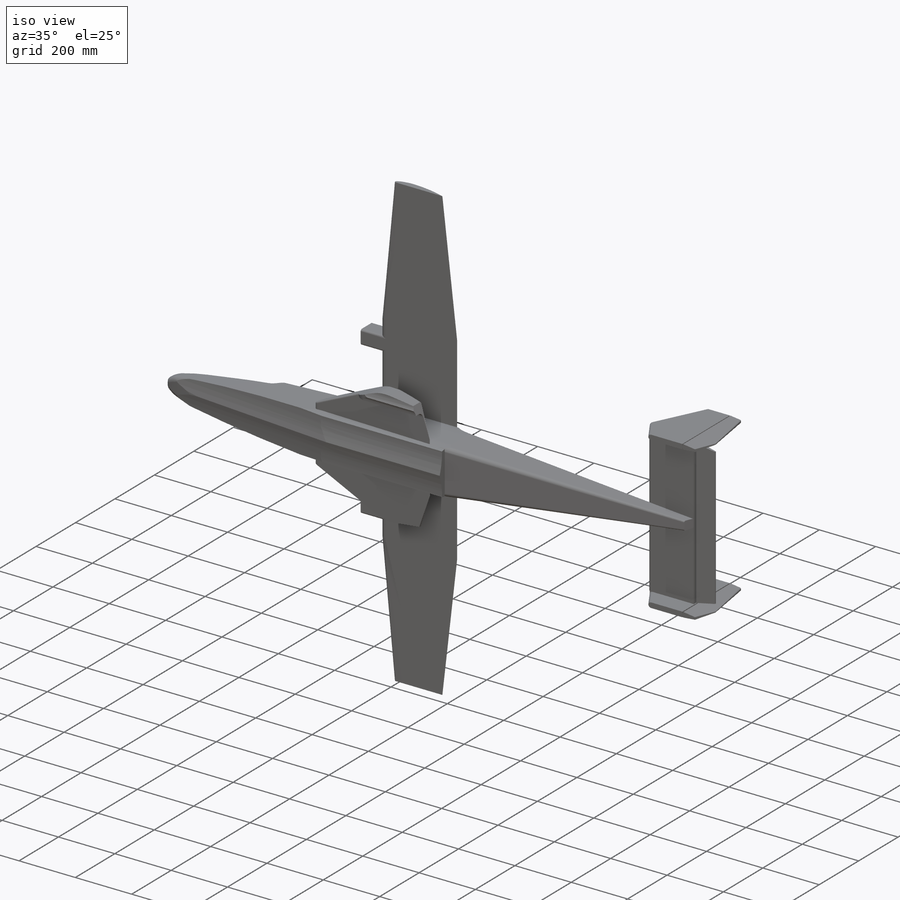
[diagram: iso view]
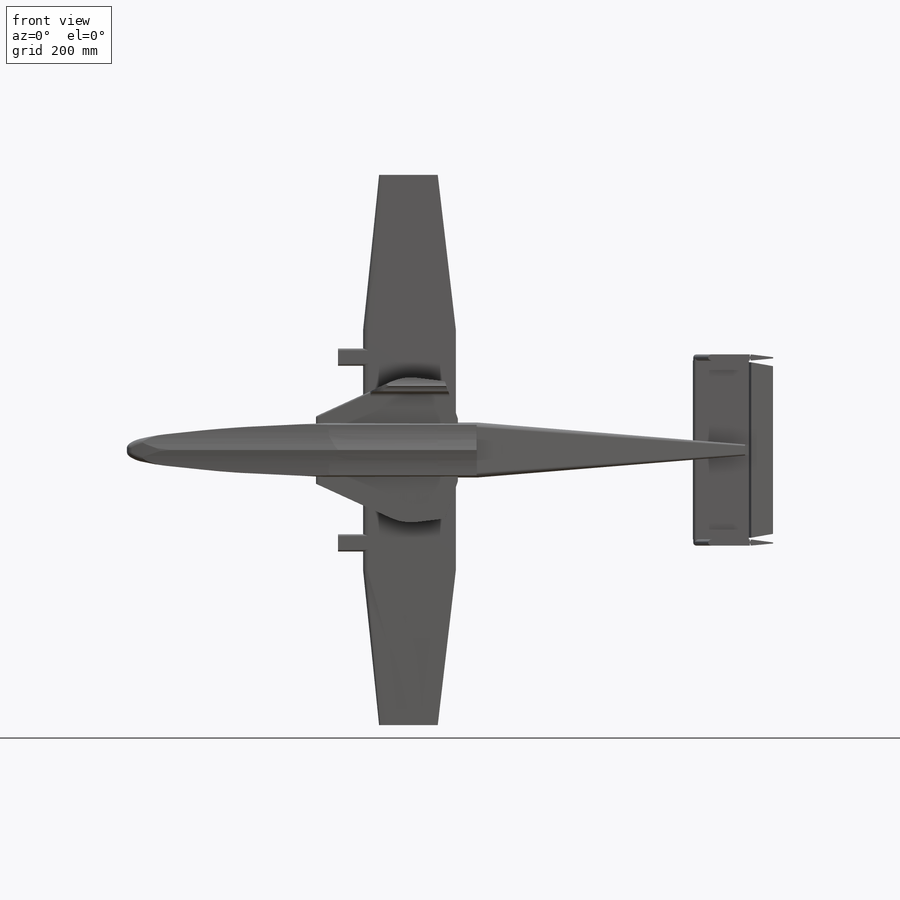
[diagram: front view]
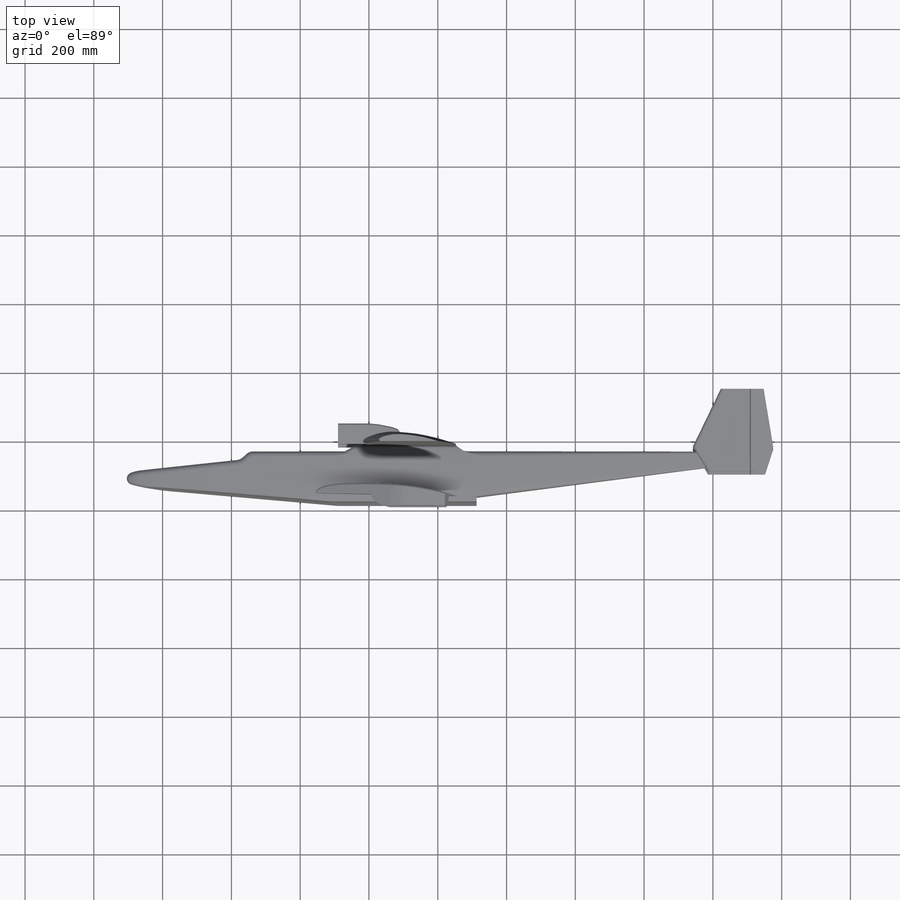
[diagram: top view]
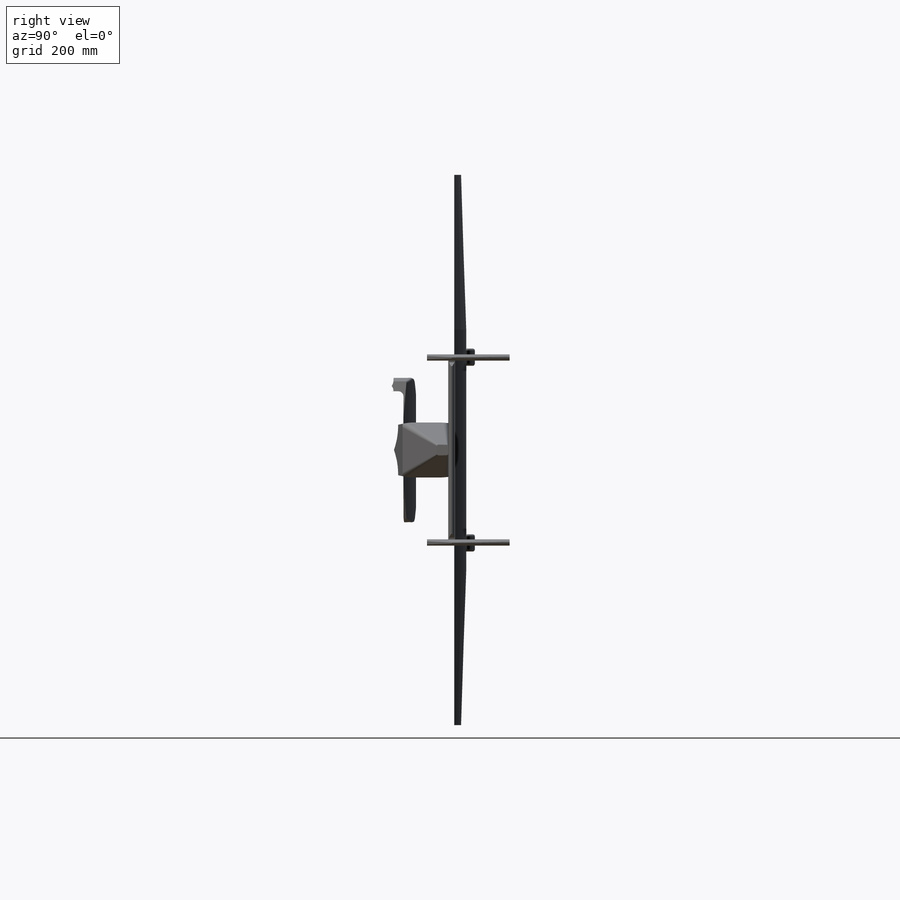
[diagram: right view]
SOLIDWORKS PART (.sldprt)
format: sldprt  version: not decoded by parser v0  size: 2,961,408 bytes
history: native  units: mm
features: sketch x27, extrude x19, cut_extrude x13, plane x10, fillet x8, material x1 (+9 scaffold rows collapsed)
feature tree (87):
  scaffold x9  (default folders/planes/origin — collapsed)
  material  "Материал <не указан>"
  plane  "Спереди"
  plane  "Сверху"
  plane  "Справа"
  sketch  "Эскиз1"  dims[c1.D6=100.0mm c1.D7=80.0mm c1.D8=10.0mm c1.D9=10.0mm c1.D10=10.0mm c1.D11=10.0mm c1.D12=1.0mm c1.D13=2.0mm c2.D12=4.0mm c2.D14=26.0mm c2.D15=66.0mm c2.D6=~12.491608mm c2.D7=156.0mm c2.D8=156.0mm c2.D9=166.0mm c2.D5=86.0mm c3.D6=186.0mm c3.D8=18.0mm c3.D2=18.0mm c3.D13=29.0mm c3.D14=26.0mm c3.D19=133.0mm c3.D1=~594.336167mm c4.D1=5.0deg c4.D2=~683.098236mm c5.D2=10.0deg c5.D3=25.0mm c5.D4=290.0mm c5.D5=890.0mm c5.D7=886.0mm c5.D9=150.0mm c6.D2=220.0mm c6.D5=140.0mm c6.D6=35.0mm c6.D10=250.0mm c6.D11=~252.863265mm c7.D11=21.0deg c7.D12=~303.115733mm c8.D12=~348.975717deg c8.D15=~447.792138mm c9.D15=~7.310268deg c9.D16=~982.681201mm c9.D17=~157.595349mm c9.D18=~48.642472mm c9.D19=~57.138732mm c10.D18=~586.679863mm c10.D20=~718.858053mm c10.D21=~17.18648mm c11.D21=~145.120304deg c11.D22=~259.277355mm c11.D23=~377.81352mm]
  extrude  "Бобышка-Вытянуть2"  Depth=160mm
  sketch  "Эскиз3"  dims[D1=30.0mm D2=~789.809966mm]
  cut_extrude  "Вырез-Вытянуть1"  [1 undecoded]
  sketch  "Эскиз4"  dims[D1=2440.0mm D2=2440.0mm D3=624.0mm D4=80.0mm D5=624.0mm D6=80.0mm D7=80.0mm D8=80.0mm D9=20.0mm D10=20.0mm D11=20.0mm D12=20.0mm]
  cut_extrude  "Вырез-Вытянуть2"  [1 undecoded]
  sketch  "Эскиз5"  dims[D1=190.0mm D2=190.0mm D3=150.0mm D4=150.0mm D5=150.0mm D6=150.0mm D7=150.0mm D8=150.0mm]
  cut_extrude  "Вырез-Вытянуть4"  Depth=1840mm
  plane  "Плоскость5"
  sketch  "Эскиз12"  dims[c1.D1=150.0mm c1.D2=150.0mm c1.D3=150.0mm c1.D4=150.0mm c1.D5=40.0mm c1.D6=40.0mm c1.D7=340.0mm c1.D8=340.0mm c1.D9=130.0mm c1.D10=130.0mm c1.D11=40.0mm c1.D12=40.0mm c1.D13=40.0mm c1.D14=40.0mm c2.D5=130.0mm c2.D6=130.0mm c2.D15=~14.235636mm c2.D16=~14.235636mm]
  cut_extrude  "Вырез-Вытянуть8"  Depth=1840mm
  fillet  "Скругление1"  Radius=15mm
  fillet  "Скругление переменного радиуса2"  Radius=5mm
  fillet  "Скругление переменного радиуса3"  Radius=15mm
  fillet  "Скругление переменного радиуса4"  Radius=5mm
  plane  "Плоскость6"  Offset=80mm
  sketch  "Эскиз14"  dims[c1.D1=260.0mm c1.D2=460.0mm c1.D3=720.0mm c1.D4=720.0mm c1.D5=310.0mm c1.D6=120.0mm c1.D7=70.0mm c1.D8=70.0mm c1.D9=5.0mm c1.D10=5.0mm c1.D11=5.0mm c1.D12=7.0mm c1.D13=12.0mm c1.D14=12.0mm c2.D1=30.0mm c2.D2=10.0mm c2.D3=8.0mm c2.D4=2.0mm c2.D5=8.5mm c2.D6=3.5mm c2.D7=13.5mm c2.D8=33.5mm c2.D9=63.5mm c2.D10=133.5mm c2.D11=263.5mm c2.D12=263.5mm c2.D13=263.5mm c2.D14=353.5mm c2.D15=353.5mm c2.D16=353.5mm c3.D1=~54.751296mm c4.D1=~1.498865deg c5.D1=~508.43738mm c6.D1=~159.339406deg]
  extrude  "Бобышка-Вытянуть5"  Depth=500mm
  sketch  "Эскиз18"  dims[c1.D1=143.5mm c1.D2=143.5mm c2.D1=~401.409986mm]
  cut_extrude  "Вырез-Вытянуть14"  [1 undecoded]
  sketch  "Эскиз16"  dims[D3=550.0mm D4=360.0mm D5=270.0mm D6=150.0mm D7=150.0mm D8=180.0mm D9=100.0mm D10=40.0mm D11=10.0mm D12=4.0mm D13=5.0mm D14=8.0mm D15=18.0mm D16=28.0mm D1=35.0mm D2=270.0mm D17=~3.455608mm]
  extrude  "Бобышка-Вытянуть6"  Depth=730mm
  sketch  "Эскиз17"  dims[D1=700.0mm D2=~24.855743mm D3=~47.551016mm]
  cut_extrude  "Вырез-Вытянуть13"  [1 undecoded]
  sketch  "Эскиз19"
  cut_extrude  "Вырез-Вытянуть15"  [1 undecoded]
  sketch  "Эскиз20"  dims[D1=800.0mm]
  plane  "Плоскость7"  Offset=720mm
  sketch  "Эскиз21"  dims[D2=13.5mm D3=6.0mm D4=4.0mm D5=3.0mm D6=3.0mm D7=33.0mm D8=23.0mm D9=83.0mm D10=83.0mm D11=83.0mm D12=83.0mm D13=233.0mm D14=233.0mm D15=233.0mm D1=20.0mm]
  extrude  "Скругление5"  Depth=90mm
  extrude  "Скругление6"  Depth=10mm
  extrude  "Скругление7"  Depth=30mm
  plane  "Плоскость8"  Offset=450mm
  sketch  "Эскиз22"  dims[D1=0.0mm]
  sketch  "Эскиз23"  dims[D1=0.0mm]
  plane  "Плоскость9"  Offset=80mm
  sketch  "Эскиз24"  dims[c1.D2=70.0mm c1.D3=163.0mm c2.D2=20.0mm c2.D1=0.0mm]
  extrude  "Бобышка-Вытянуть7"  Depth=520mm
  extrude  "Бобышка-Вытянуть8"  [1 undecoded]
  sketch  "Эскиз24<4>"  dims[D1=510.0mm]
  sketch  "Эскиз25"  dims[D1=240.0mm D2=~70.409068mm D3=~42.636478mm D4=~168.208743mm D5=~47.079918mm]
  extrude  "Бобышка-Вытянуть9"  Depth=18mm
  sketch  "Эскиз26"
  extrude  "Бобышка-Вытянуть10"  Depth=18mm
  sketch  "Эскиз27"  dims[D1=0.0mm]
  cut_extrude  "Вырез-Вытянуть17"  [1 undecoded]
  sketch  "Эскиз28"  dims[D1=0.0mm D2=0.0mm]
  cut_extrude  "Вырез-Вытянуть19"  [1 undecoded]
  extrude  "Скругление8"  Depth=9mm
  sketch  "Эскиз29"  dims[c1.D1=~63.091224mm c2.D1=10.0deg c2.D2=~63.091224mm c3.D2=10.0deg]
  cut_extrude  "Вырез-Вытянуть20"  [1 undecoded]
  fillet  "Скругление переменного радиуса5"  Radius=1mm
  fillet  "Скругление переменного радиуса6"  Radius=4mm
  fillet  "Скругление переменного радиуса7"  Radius=1mm
  fillet  "Скругление переменного радиуса8"  Radius=4mm
  plane  "Плоскость10"  Offset=290mm
  sketch  "Эскиз30"  dims[D1=55.0mm D2=60.0mm D3=50.0mm D4=55.0mm D5=50.0mm D6=60.0mm]
  extrude  "Бобышка-Вытянуть11"  Depth=180mm
  sketch  "Эскиз31"
  cut_extrude  "Вырез-Вытянуть21"  Depth=610mm
  extrude  "Скругление9"  Depth=20mm
  extrude  "Скругление10"  Depth=180mm
  extrude  "Скругление11"  Depth=6mm
  sketch  "Эскиз32"
  extrude  "Бобышка-Вытянуть12"  Depth=40mm
  plane  "Плоскость11"  Offset=30mm
  sketch  "Эскиз33"
  cut_extrude  "Вырез-Вытянуть22"  [1 undecoded]
  sketch  "Эскиз34"
  cut_extrude  "Вырез-Вытянуть23"  Depth=40mm
  extrude  "Скругление12"  Depth=15mm
  extrude  "Скругление13"  Depth=5mm ModelUUID=0mm UUID=0mm
  sketch  "Эскиз35"
  extrude  "Бобышка-Вытянуть13"  Depth=113mm
decode coverage: 50 of 67 modeling features carry decoded parameters
note: ~ marks probable driven/reference dimensions
note: 10 parameter values undecoded
summary: no parameter record found for 10 features
note: suppression state not decoded; provenance and decode notes live in map.json
